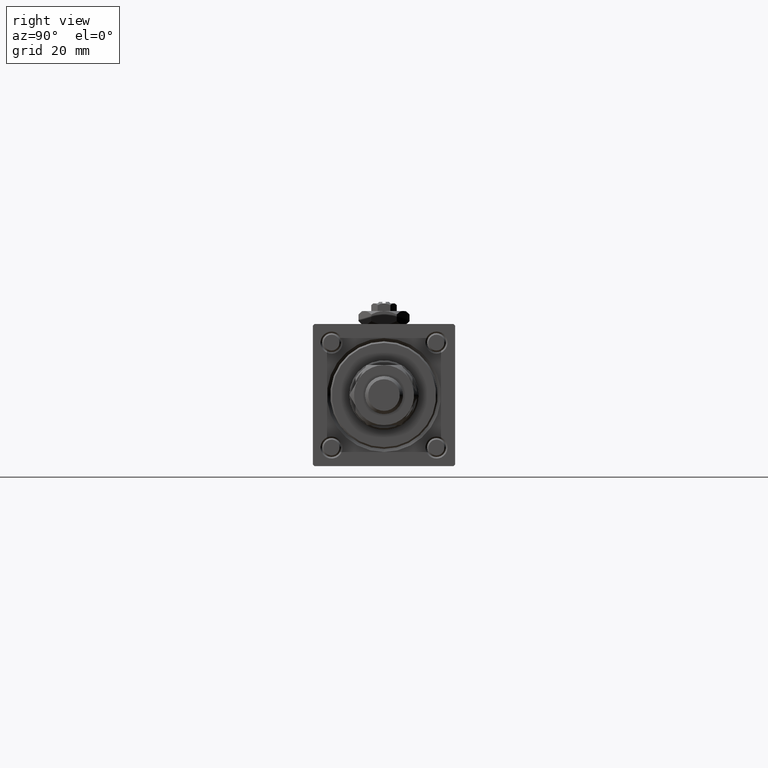
[diagram: clean part render]
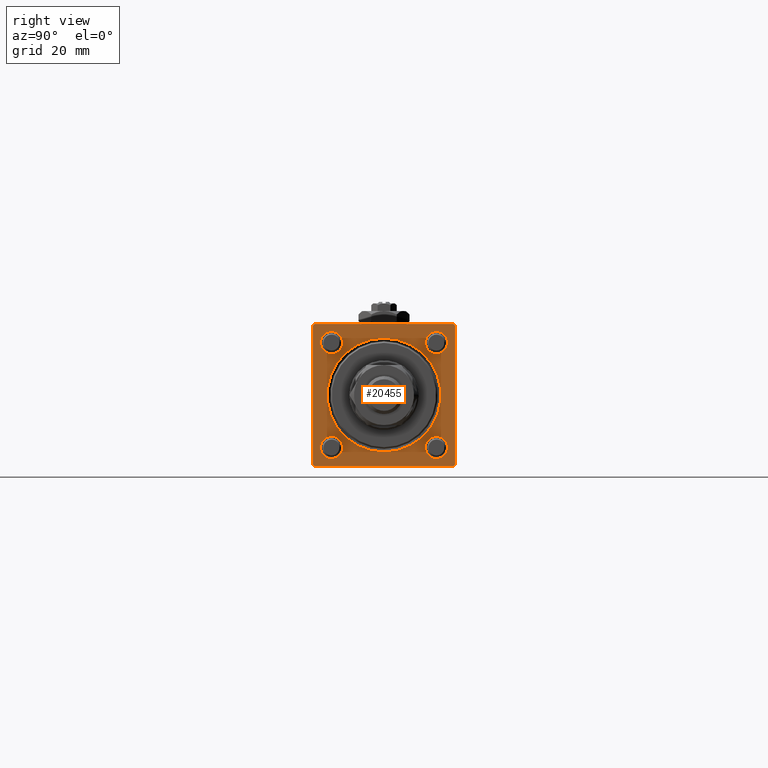
[diagram: same view with one face highlighted and labeled with its STEP entity id]
A machine part, right view. The second image highlights one B-rep face of the part: STEP entity #20455.
In plain terms, the highlighted planar face has unit normal (-1, 0, 0).
Its self-contained STEP definition (entity closure, byte-faithful):
#487 = CARTESIAN_POINT ( 'NONE',  ( 153.0000000000000284, -16.59999999999999076, 20.09999999999998721 ) ) ;
#1095 = LINE ( 'NONE', #56715, #2612 ) ;
#1142 = AXIS2_PLACEMENT_3D ( 'NONE', #28952, #37752, #42309 ) ;
#1309 = CARTESIAN_POINT ( 'NONE',  ( 153.0000000000000284, -16.59999999999999076, -13.09999999999999076 ) ) ;
#1809 = LINE ( 'NONE', #6664, #23826 ) ;
#1923 = CIRCLE ( 'NONE', #14569, 3.500000000000016875 ) ;
#2012 = AXIS2_PLACEMENT_3D ( 'NONE', #39401, #39707, #11767 ) ;
#2576 = EDGE_CURVE ( 'NONE', #18955, #57330, #44354, .T. ) ;
#2612 = VECTOR ( 'NONE', #52145, 1000.000000000000000 ) ;
#2633 = ORIENTED_EDGE ( 'NONE', *, *, #27997, .T. ) ;
#4853 = DIRECTION ( 'NONE',  ( -1.000000000000000000, 0.000000000000000000, -0.000000000000000000 ) ) ;
#5157 = CARTESIAN_POINT ( 'NONE',  ( 153.0000000000000284, 16.59999999999999787, -16.60000000000000497 ) ) ;
#5711 = ORIENTED_EDGE ( 'NONE', *, *, #28195, .T. ) ;
#6321 = CARTESIAN_POINT ( 'NONE',  ( 153.0000000000000284, 22.00000000000000355, 22.50000000000000355 ) ) ;
#6502 = AXIS2_PLACEMENT_3D ( 'NONE', #51945, #4853, #51347 ) ;
#6664 = CARTESIAN_POINT ( 'NONE',  ( 153.0000000000000284, -22.49999999999999645, 21.99999999999999289 ) ) ;
#7708 = VECTOR ( 'NONE', #58162, 999.9999999999998863 ) ;
#8150 = ORIENTED_EDGE ( 'NONE', *, *, #56459, .T. ) ;
#8248 = CARTESIAN_POINT ( 'NONE',  ( 153.0000000000000284, 16.59999999999999787, -16.60000000000000497 ) ) ;
#8748 = AXIS2_PLACEMENT_3D ( 'NONE', #27633, #14248, #51611 ) ;
#8892 = DIRECTION ( 'NONE',  ( 0.000000000000000000, 0.000000000000000000, 1.000000000000000000 ) ) ;
#8968 = CARTESIAN_POINT ( 'NONE',  ( 153.0000000000000284, 22.50000000000000355, 22.00000000000000355 ) ) ;
#8992 = ORIENTED_EDGE ( 'NONE', *, *, #49110, .T. ) ;
#9167 = AXIS2_PLACEMENT_3D ( 'NONE', #5157, #20327, #33414 ) ;
#9896 = EDGE_CURVE ( 'NONE', #34876, #50849, #54201, .T. ) ;
#10132 = EDGE_LOOP ( 'NONE', ( #27590, #36362 ) ) ;
#10295 = ORIENTED_EDGE ( 'NONE', *, *, #9896, .T. ) ;
#10409 = FACE_BOUND ( 'NONE', #10132, .T. ) ;
#10998 = FACE_BOUND ( 'NONE', #17328, .T. ) ;
#11767 = DIRECTION ( 'NONE',  ( 0.000000000000000000, 0.000000000000000000, 1.000000000000000000 ) ) ;
#12295 = EDGE_CURVE ( 'NONE', #41459, #50492, #44656, .T. ) ;
#12375 = CARTESIAN_POINT ( 'NONE',  ( 153.0000000000000284, -16.59999999999999076, -20.10000000000002274 ) ) ;
#12480 = VERTEX_POINT ( 'NONE', #12375 ) ;
#12548 = CARTESIAN_POINT ( 'NONE',  ( 153.0000000000000284, 16.59999999999999787, 13.10000000000002807 ) ) ;
#12695 = CIRCLE ( 'NONE', #2012, 3.499999999999975131 ) ;
#12724 = EDGE_CURVE ( 'NONE', #45873, #12480, #1923, .T. ) ;
#12754 = ORIENTED_EDGE ( 'NONE', *, *, #21400, .T. ) ;
#13711 = VERTEX_POINT ( 'NONE', #54843 ) ;
#14060 = VERTEX_POINT ( 'NONE', #45332 ) ;
#14197 = EDGE_CURVE ( 'NONE', #42080, #59122, #18294, .T. ) ;
#14248 = DIRECTION ( 'NONE',  ( -1.000000000000000000, 0.000000000000000000, -0.000000000000000000 ) ) ;
#14275 = AXIS2_PLACEMENT_3D ( 'NONE', #56290, #32292, #8892 ) ;
#14569 = AXIS2_PLACEMENT_3D ( 'NONE', #56703, #15066, #16256 ) ;
#15066 = DIRECTION ( 'NONE',  ( -1.000000000000000000, 0.000000000000000000, -0.000000000000000000 ) ) ;
#15496 = VECTOR ( 'NONE', #47548, 1000.000000000000000 ) ;
#16233 = VERTEX_POINT ( 'NONE', #35096 ) ;
#16256 = DIRECTION ( 'NONE',  ( 0.000000000000000000, 0.000000000000000000, 1.000000000000000000 ) ) ;
#16300 = CARTESIAN_POINT ( 'NONE',  ( 153.0000000000000284, -16.59999999999999076, 13.10000000000003162 ) ) ;
#16881 = VERTEX_POINT ( 'NONE', #6321 ) ;
#17328 = EDGE_LOOP ( 'NONE', ( #30390, #26038 ) ) ;
#17745 = VERTEX_POINT ( 'NONE', #44786 ) ;
#18285 = EDGE_CURVE ( 'NONE', #17745, #44277, #42783, .T. ) ;
#18294 = LINE ( 'NONE', #32278, #51520 ) ;
#18470 = DIRECTION ( 'NONE',  ( 0.000000000000000000, 0.000000000000000000, 1.000000000000000000 ) ) ;
#18784 = EDGE_CURVE ( 'NONE', #50492, #41459, #12695, .T. ) ;
#18955 = VERTEX_POINT ( 'NONE', #487 ) ;
#19000 = LINE ( 'NONE', #46953, #24231 ) ;
#19885 = EDGE_LOOP ( 'NONE', ( #37049, #59391 ) ) ;
#20122 = FACE_BOUND ( 'NONE', #22365, .T. ) ;
#20138 = CARTESIAN_POINT ( 'NONE',  ( 153.0000000000000284, 22.50000000000000355, -21.99999999999995381 ) ) ;
#20198 = CARTESIAN_POINT ( 'NONE',  ( 153.0000000000000284, 0.000000000000000000, -18.00000000000000355 ) ) ;
#20327 = DIRECTION ( 'NONE',  ( -1.000000000000000000, 0.000000000000000000, -0.000000000000000000 ) ) ;
#20455 = ADVANCED_FACE ( 'NONE', ( #10998, #10409, #28362, #56899, #20122, #33797 ), #47775, .F. ) ;
#20774 = ORIENTED_EDGE ( 'NONE', *, *, #2576, .T. ) ;
#21400 = EDGE_CURVE ( 'NONE', #14060, #59122, #23279, .T. ) ;
#21801 = EDGE_LOOP ( 'NONE', ( #22394, #10295, #39083, #12754, #24513, #2633, #5711, #8992 ) ) ;
#22265 = DIRECTION ( 'NONE',  ( 0.000000000000000000, 0.000000000000000000, 1.000000000000000000 ) ) ;
#22365 = EDGE_LOOP ( 'NONE', ( #23767, #47551 ) ) ;
#22394 = ORIENTED_EDGE ( 'NONE', *, *, #30968, .T. ) ;
#23279 = LINE ( 'NONE', #46374, #57460 ) ;
#23767 = ORIENTED_EDGE ( 'NONE', *, *, #54370, .T. ) ;
#23826 = VECTOR ( 'NONE', #56544, 1000.000000000000000 ) ;
#23924 = DIRECTION ( 'NONE',  ( -1.000000000000000000, 0.000000000000000000, -0.000000000000000000 ) ) ;
#24153 = LINE ( 'NONE', #33570, #15496 ) ;
#24231 = VECTOR ( 'NONE', #56084, 1000.000000000000114 ) ;
#24508 = EDGE_LOOP ( 'NONE', ( #8150, #20774 ) ) ;
#24513 = ORIENTED_EDGE ( 'NONE', *, *, #14197, .F. ) ;
#26038 = ORIENTED_EDGE ( 'NONE', *, *, #12724, .T. ) ;
#26792 = DIRECTION ( 'NONE',  ( -1.000000000000000000, 0.000000000000000000, -0.000000000000000000 ) ) ;
#27590 = ORIENTED_EDGE ( 'NONE', *, *, #18285, .T. ) ;
#27633 = CARTESIAN_POINT ( 'NONE',  ( 153.0000000000000284, 16.59999999999999787, 16.60000000000000497 ) ) ;
#27693 = EDGE_CURVE ( 'NONE', #16233, #36816, #57195, .T. ) ;
#27997 = EDGE_CURVE ( 'NONE', #42080, #16881, #19000, .T. ) ;
#28195 = EDGE_CURVE ( 'NONE', #16881, #43126, #24153, .T. ) ;
#28362 = FACE_BOUND ( 'NONE', #19885, .T. ) ;
#28433 = CARTESIAN_POINT ( 'NONE',  ( 153.0000000000000284, 16.59999999999999787, 20.09999999999998010 ) ) ;
#28449 = DIRECTION ( 'NONE',  ( -0.000000000000000000, 0.7071067811865376918, 0.7071067811865574537 ) ) ;
#28952 = CARTESIAN_POINT ( 'NONE',  ( 153.0000000000000284, 0.000000000000000000, 0.000000000000000000 ) ) ;
#29467 = EDGE_CURVE ( 'NONE', #12480, #45873, #37838, .T. ) ;
#30355 = CARTESIAN_POINT ( 'NONE',  ( 153.0000000000000284, -21.99999999999998224, -22.50000000000000000 ) ) ;
#30390 = ORIENTED_EDGE ( 'NONE', *, *, #29467, .T. ) ;
#30968 = EDGE_CURVE ( 'NONE', #13711, #34876, #51040, .T. ) ;
#31645 = DIRECTION ( 'NONE',  ( 0.000000000000000000, 0.000000000000000000, 1.000000000000000000 ) ) ;
#31697 = CARTESIAN_POINT ( 'NONE',  ( 153.0000000000000284, -21.99999999999999645, 22.49999999999999289 ) ) ;
#31710 = CARTESIAN_POINT ( 'NONE',  ( 153.0000000000000284, -16.59999999999999076, -16.60000000000000853 ) ) ;
#32127 = AXIS2_PLACEMENT_3D ( 'NONE', #8248, #26792, #31645 ) ;
#32278 = CARTESIAN_POINT ( 'NONE',  ( 153.0000000000000284, 22.50000000000000355, 22.50000000000000355 ) ) ;
#32292 = DIRECTION ( 'NONE',  ( -1.000000000000000000, 0.000000000000000000, -0.000000000000000000 ) ) ;
#33414 = DIRECTION ( 'NONE',  ( 0.000000000000000000, 0.000000000000000000, 1.000000000000000000 ) ) ;
#33570 = CARTESIAN_POINT ( 'NONE',  ( 153.0000000000000284, 22.50000000000000355, 22.50000000000000355 ) ) ;
#33797 = FACE_OUTER_BOUND ( 'NONE', #21801, .T. ) ;
#34876 = VERTEX_POINT ( 'NONE', #47066 ) ;
#35096 = CARTESIAN_POINT ( 'NONE',  ( 153.0000000000000284, 2.204364238465235822E-15, 18.00000000000000355 ) ) ;
#35945 = CARTESIAN_POINT ( 'NONE',  ( 153.0000000000000284, -16.59999999999999076, 16.60000000000000853 ) ) ;
#36362 = ORIENTED_EDGE ( 'NONE', *, *, #42803, .T. ) ;
#36816 = VERTEX_POINT ( 'NONE', #20198 ) ;
#36932 = VECTOR ( 'NONE', #50436, 1000.000000000000000 ) ;
#37049 = ORIENTED_EDGE ( 'NONE', *, *, #18784, .T. ) ;
#37752 = DIRECTION ( 'NONE',  ( -1.000000000000000000, 0.000000000000000000, -0.000000000000000000 ) ) ;
#37838 = CIRCLE ( 'NONE', #39787, 3.500000000000016875 ) ;
#39083 = ORIENTED_EDGE ( 'NONE', *, *, #52727, .F. ) ;
#39401 = CARTESIAN_POINT ( 'NONE',  ( 153.0000000000000284, 16.59999999999999787, 16.60000000000000497 ) ) ;
#39707 = DIRECTION ( 'NONE',  ( -1.000000000000000000, 0.000000000000000000, -0.000000000000000000 ) ) ;
#39787 = AXIS2_PLACEMENT_3D ( 'NONE', #31710, #49048, #45373 ) ;
#41245 = CARTESIAN_POINT ( 'NONE',  ( 153.0000000000000284, 0.000000000000000000, 0.000000000000000000 ) ) ;
#41459 = VERTEX_POINT ( 'NONE', #28433 ) ;
#42080 = VERTEX_POINT ( 'NONE', #8968 ) ;
#42309 = DIRECTION ( 'NONE',  ( -0.000000000000000000, 0.000000000000000000, 1.000000000000000000 ) ) ;
#42507 = CIRCLE ( 'NONE', #55156, 3.499999999999975131 ) ;
#42783 = CIRCLE ( 'NONE', #32127, 3.499999999999975131 ) ;
#42803 = EDGE_CURVE ( 'NONE', #44277, #17745, #53826, .T. ) ;
#43126 = VERTEX_POINT ( 'NONE', #31697 ) ;
#43852 = CARTESIAN_POINT ( 'NONE',  ( 153.0000000000000284, -21.99999999999999645, -22.50000000000000000 ) ) ;
#44277 = VERTEX_POINT ( 'NONE', #48004 ) ;
#44354 = CIRCLE ( 'NONE', #14275, 3.499999999999975131 ) ;
#44656 = CIRCLE ( 'NONE', #8748, 3.499999999999975131 ) ;
#44786 = CARTESIAN_POINT ( 'NONE',  ( 153.0000000000000284, 16.59999999999999787, -20.09999999999998010 ) ) ;
#45332 = CARTESIAN_POINT ( 'NONE',  ( 153.0000000000000284, 21.99999999999998934, -22.49999999999999645 ) ) ;
#45373 = DIRECTION ( 'NONE',  ( 0.000000000000000000, 0.000000000000000000, 1.000000000000000000 ) ) ;
#45873 = VERTEX_POINT ( 'NONE', #1309 ) ;
#46287 = CIRCLE ( 'NONE', #6502, 18.00000000000000355 ) ;
#46374 = CARTESIAN_POINT ( 'NONE',  ( 153.0000000000000284, 22.50000000000000355, -21.99999999999996803 ) ) ;
#46953 = CARTESIAN_POINT ( 'NONE',  ( 153.0000000000000284, 22.00000000000000355, 22.50000000000000355 ) ) ;
#47066 = CARTESIAN_POINT ( 'NONE',  ( 153.0000000000000284, -22.49999999999999645, -21.99999999999997868 ) ) ;
#47548 = DIRECTION ( 'NONE',  ( 0.000000000000000000, -1.000000000000000000, -2.312964634635742957E-16 ) ) ;
#47551 = ORIENTED_EDGE ( 'NONE', *, *, #27693, .T. ) ;
#47775 = PLANE ( 'NONE',  #1142 ) ;
#48004 = CARTESIAN_POINT ( 'NONE',  ( 153.0000000000000284, 16.59999999999999787, -13.10000000000002807 ) ) ;
#49025 = DIRECTION ( 'NONE',  ( -1.000000000000000000, 0.000000000000000000, -0.000000000000000000 ) ) ;
#49048 = DIRECTION ( 'NONE',  ( -1.000000000000000000, 0.000000000000000000, -0.000000000000000000 ) ) ;
#49110 = EDGE_CURVE ( 'NONE', #43126, #13711, #1809, .T. ) ;
#50422 = AXIS2_PLACEMENT_3D ( 'NONE', #41245, #23924, #18470 ) ;
#50436 = DIRECTION ( 'NONE',  ( 0.000000000000000000, 0.000000000000000000, -1.000000000000000000 ) ) ;
#50492 = VERTEX_POINT ( 'NONE', #12548 ) ;
#50800 = DIRECTION ( 'NONE',  ( 0.000000000000000000, 0.000000000000000000, -1.000000000000000000 ) ) ;
#50849 = VERTEX_POINT ( 'NONE', #30355 ) ;
#51040 = LINE ( 'NONE', #56027, #36932 ) ;
#51347 = DIRECTION ( 'NONE',  ( 0.000000000000000000, 0.000000000000000000, 1.000000000000000000 ) ) ;
#51520 = VECTOR ( 'NONE', #50800, 1000.000000000000000 ) ;
#51611 = DIRECTION ( 'NONE',  ( 0.000000000000000000, 0.000000000000000000, 1.000000000000000000 ) ) ;
#51945 = CARTESIAN_POINT ( 'NONE',  ( 153.0000000000000284, 0.000000000000000000, 0.000000000000000000 ) ) ;
#52145 = DIRECTION ( 'NONE',  ( 0.000000000000000000, -1.000000000000000000, -7.709882115452476934E-17 ) ) ;
#52727 = EDGE_CURVE ( 'NONE', #14060, #50849, #1095, .T. ) ;
#53826 = CIRCLE ( 'NONE', #9167, 3.499999999999975131 ) ;
#54201 = LINE ( 'NONE', #43852, #7708 ) ;
#54370 = EDGE_CURVE ( 'NONE', #36816, #16233, #46287, .T. ) ;
#54843 = CARTESIAN_POINT ( 'NONE',  ( 153.0000000000000284, -22.49999999999999645, 21.99999999999999289 ) ) ;
#55156 = AXIS2_PLACEMENT_3D ( 'NONE', #35945, #49025, #22265 ) ;
#56027 = CARTESIAN_POINT ( 'NONE',  ( 153.0000000000000284, -22.49999999999999645, 22.49999999999999289 ) ) ;
#56084 = DIRECTION ( 'NONE',  ( 0.000000000000000000, -0.7071067811865474617, 0.7071067811865474617 ) ) ;
#56290 = CARTESIAN_POINT ( 'NONE',  ( 153.0000000000000284, -16.59999999999999076, 16.60000000000000853 ) ) ;
#56459 = EDGE_CURVE ( 'NONE', #57330, #18955, #42507, .T. ) ;
#56544 = DIRECTION ( 'NONE',  ( -0.000000000000000000, -0.7071067811865378028, -0.7071067811865573427 ) ) ;
#56703 = CARTESIAN_POINT ( 'NONE',  ( 153.0000000000000284, -16.59999999999999076, -16.60000000000000853 ) ) ;
#56715 = CARTESIAN_POINT ( 'NONE',  ( 153.0000000000000284, 22.50000000000000355, -22.49999999999999645 ) ) ;
#56899 = FACE_BOUND ( 'NONE', #24508, .T. ) ;
#57195 = CIRCLE ( 'NONE', #50422, 18.00000000000000355 ) ;
#57330 = VERTEX_POINT ( 'NONE', #16300 ) ;
#57460 = VECTOR ( 'NONE', #28449, 999.9999999999998863 ) ;
#58162 = DIRECTION ( 'NONE',  ( 0.000000000000000000, 0.7071067811865425767, -0.7071067811865525687 ) ) ;
#59122 = VERTEX_POINT ( 'NONE', #20138 ) ;
#59391 = ORIENTED_EDGE ( 'NONE', *, *, #12295, .T. ) ;